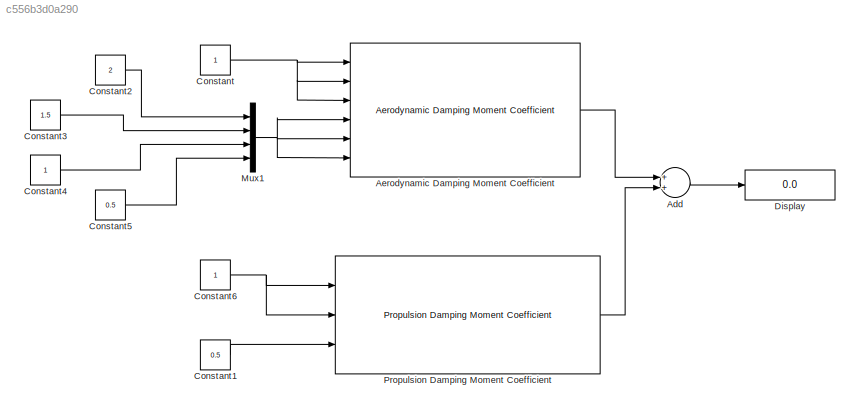
MODEL slx_c556b3d0a290
KIND model
BLOCK [Sum] Add
  InputSameDT = off
  OutDataTypeStr = Inherit: Inherit via internal rule
  Ports = [2, 1]
  SaturateOnIntegerOverflow = off
BLOCK [Reference] Aerodynamic Damping Moment Coefficient  REF=rocket_angular_flight_library/Aerodynamic Damping Moment Coefficient
  Ports = [6, 1]
  SourceBlock = rocket_angular_flight_library/Aerodynamic Damping Moment Coefficient
  SourceType = SubSystem
BLOCK [Constant] Constant
BLOCK [Constant] Constant1
  Value = 0.5
BLOCK [Constant] Constant2
  Value = 2
BLOCK [Constant] Constant3
  Value = 1.5
BLOCK [Constant] Constant4
BLOCK [Constant] Constant5
  Value = 0.5
BLOCK [Constant] Constant6
BLOCK [Display] Display
  Decimation = 1
  Ports = [1]
BLOCK [Mux] Mux1
  DisplayOption = bar
  Ports = [4, 1]
BLOCK [Reference] Propulsion Damping Moment Coefficient  REF=rocket_angular_flight_library/Propulsion Damping Moment Coefficient
  Ports = [3, 1]
  SourceBlock = rocket_angular_flight_library/Propulsion Damping Moment Coefficient
  SourceType = SubSystem
LINE Add:1 -> Display:1
LINE Aerodynamic Damping Moment Coefficient:1 -> Add:1
LINE Constant1:1 -> Propulsion Damping Moment Coefficient:3
LINE Constant2:1 -> Mux1:1
LINE Constant3:1 -> Mux1:2
LINE Constant4:1 -> Mux1:3
LINE Constant5:1 -> Mux1:4
NET Constant6:1 -> Propulsion Damping Moment Coefficient:1, Propulsion Damping Moment Coefficient:2
NET Constant:1 -> Aerodynamic Damping Moment Coefficient:1, Aerodynamic Damping Moment Coefficient:2, Aerodynamic Damping Moment Coefficient:3
NET Mux1:1 -> Aerodynamic Damping Moment Coefficient:4, Aerodynamic Damping Moment Coefficient:5, Aerodynamic Damping Moment Coefficient:6
LINE Propulsion Damping Moment Coefficient:1 -> Add:2
note: NET lines group one-source signal fan-out (src -> all destinations, sorted); 1:1 wires keep LINE
